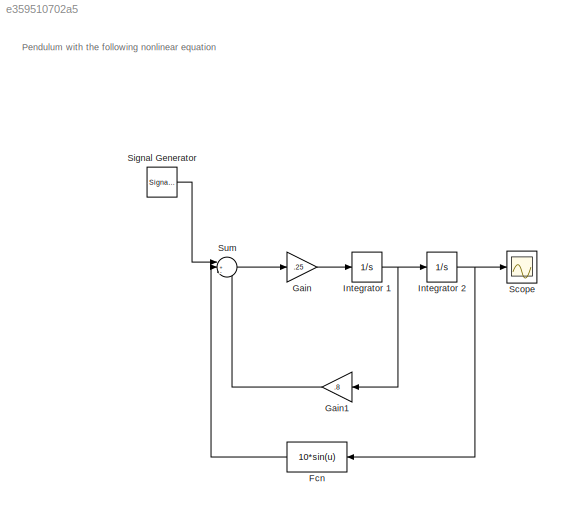
MODEL slx_e359510702a5
KIND model
CONFIG AbsTol = auto
CONFIG EnableMultiTasking = off
CONFIG FixedStep = auto
CONFIG MaxStep = auto
CONFIG MinStep = auto
CONFIG RelTol = 1e-3
CONFIG SampleTimeConstraint = Unconstrained
CONFIG SolverName = VariableStepAuto
CONFIG StartTime = 0.0
CONFIG StopTime = 30.0
BLOCK [Fcn] Fcn
  Expr = 10*sin(u)
BLOCK [Gain] Gain
  Gain = .25
BLOCK [Gain] Gain1
  Gain = .8
BLOCK [Integrator] Integrator 1
BLOCK [Integrator] Integrator 2
  InitialCondition = pi/4
BLOCK [Scope] Scope
  Floating = off
  NumInputPorts = 1
  ScopeSpecificationString = Simulink.scopes.TimeScopeBlockCfg('CurrentConfiguration', extmgr.ConfigurationSet(extmgr.Configuration('Core','General UI',true),extmgr.Configuration('Core','Source UI',true),extmgr.Configuration('Sources','WiredSimulink',true),extmgr.Configuration('Visuals','Time Domain',true,'SerializedDisplays',{struct('MinYLimReal','-0.96115','MaxYLimReal','0.97946','YLabelReal','','MinYLimMag','0.00000','MaxY...<+1332ch>
BLOCK [SignalGenerator] Signal Generator
  Amplitude = 3
  Frequency = .5
  WaveForm = square
BLOCK [Sum] Sum
  Inputs = |+--
ANNOTATION (root): Pendulum with the following nonlinear equation
LINE Fcn:1 -> Sum:2
LINE Gain1:1 -> Sum:3
LINE Gain:1 -> Integrator 1:1
NET Integrator 1:1 -> Gain1:1, Integrator 2:1
NET Integrator 2:1 -> Fcn:1, Scope:1
LINE Signal Generator:1 -> Sum:1
LINE Sum:1 -> Gain:1
note: NET lines group one-source signal fan-out (src -> all destinations, sorted); 1:1 wires keep LINE
